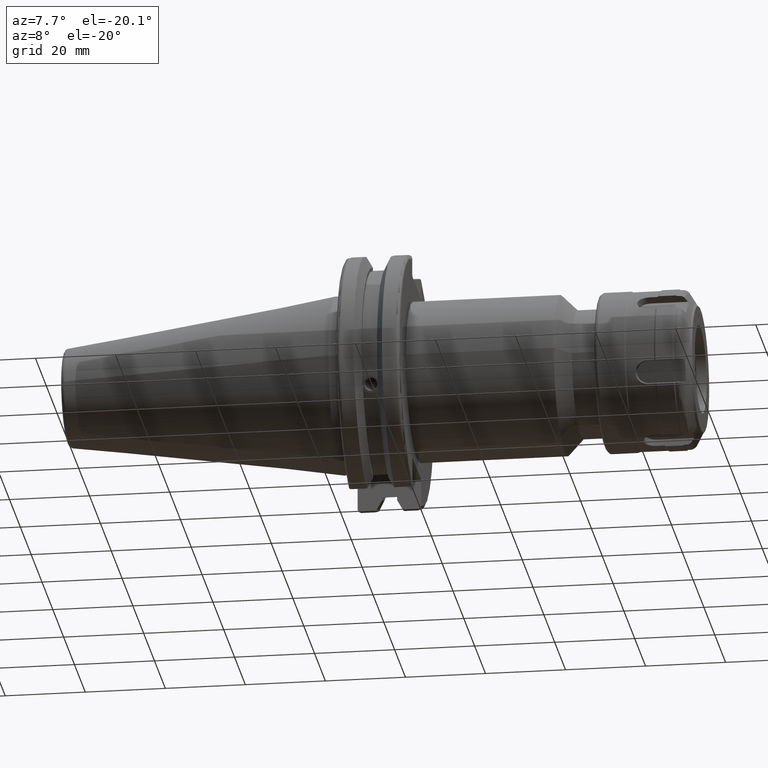
[diagram: clean part render]
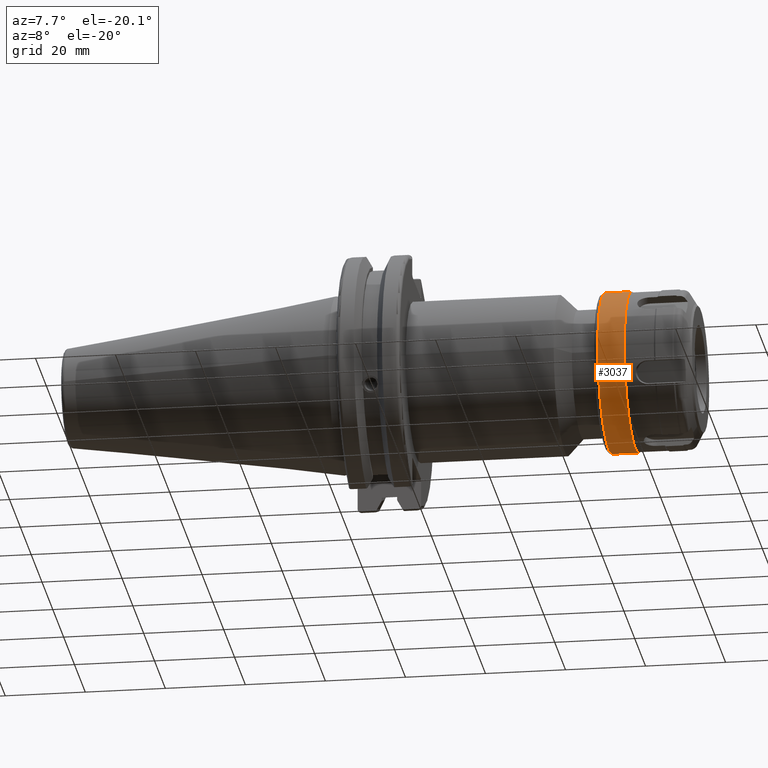
[diagram: same view with one face highlighted and labeled with its STEP entity id]
A machine part, auxiliary view. The second image highlights one B-rep face of the part: STEP entity #3037.
In plain terms, the highlighted cylindrical surface (bore or boss wall) has radius 20 mm, axis along (-1, 0, 0).
Its self-contained STEP definition (entity closure, byte-faithful):
#484=CYLINDRICAL_SURFACE('',#3464,20.);
#626=FACE_OUTER_BOUND('',#800,.T.);
#800=EDGE_LOOP('',(#2777,#2778,#2779,#2780));
#993=LINE('',#5829,#1183);
#1183=VECTOR('',#4305,20.);
#1322=CIRCLE('',#3463,20.);
#1323=CIRCLE('',#3465,20.);
#1596=VERTEX_POINT('',#5824);
#1597=VERTEX_POINT('',#5828);
#2005=EDGE_CURVE('',#1596,#1596,#1322,.T.);
#2006=EDGE_CURVE('',#1596,#1597,#993,.T.);
#2007=EDGE_CURVE('',#1597,#1597,#1323,.T.);
#2777=ORIENTED_EDGE('',*,*,#2005,.F.);
#2778=ORIENTED_EDGE('',*,*,#2006,.T.);
#2779=ORIENTED_EDGE('',*,*,#2007,.T.);
#2780=ORIENTED_EDGE('',*,*,#2006,.F.);
#3037=ADVANCED_FACE('',(#626),#484,.T.);
#3463=AXIS2_PLACEMENT_3D('',#5826,#4301,#4302);
#3464=AXIS2_PLACEMENT_3D('',#5827,#4303,#4304);
#3465=AXIS2_PLACEMENT_3D('',#5830,#4306,#4307);
#4301=DIRECTION('center_axis',(1.,0.,0.));
#4302=DIRECTION('ref_axis',(0.,1.,0.));
#4303=DIRECTION('center_axis',(1.,0.,0.));
#4304=DIRECTION('ref_axis',(0.,-1.,0.));
#4305=DIRECTION('',(-1.,0.,0.));
#4306=DIRECTION('center_axis',(1.,0.,0.));
#4307=DIRECTION('ref_axis',(0.,1.,0.));
#5824=CARTESIAN_POINT('',(23.,20.,2.44929359829471E-15));
#5826=CARTESIAN_POINT('Origin',(23.,0.,0.));
#5827=CARTESIAN_POINT('Origin',(-1.2,0.,0.));
#5828=CARTESIAN_POINT('',(16.34641016151,20.,2.44929359829471E-15));
#5829=CARTESIAN_POINT('',(-1.2,20.,2.44929359829471E-15));
#5830=CARTESIAN_POINT('Origin',(16.34641016151,0.,0.));